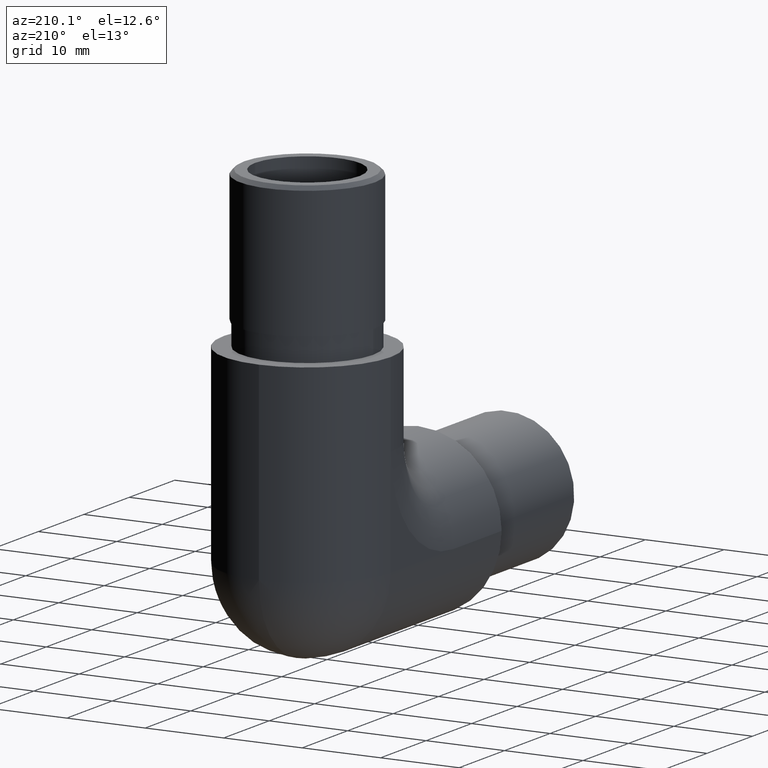
[diagram: clean part render]
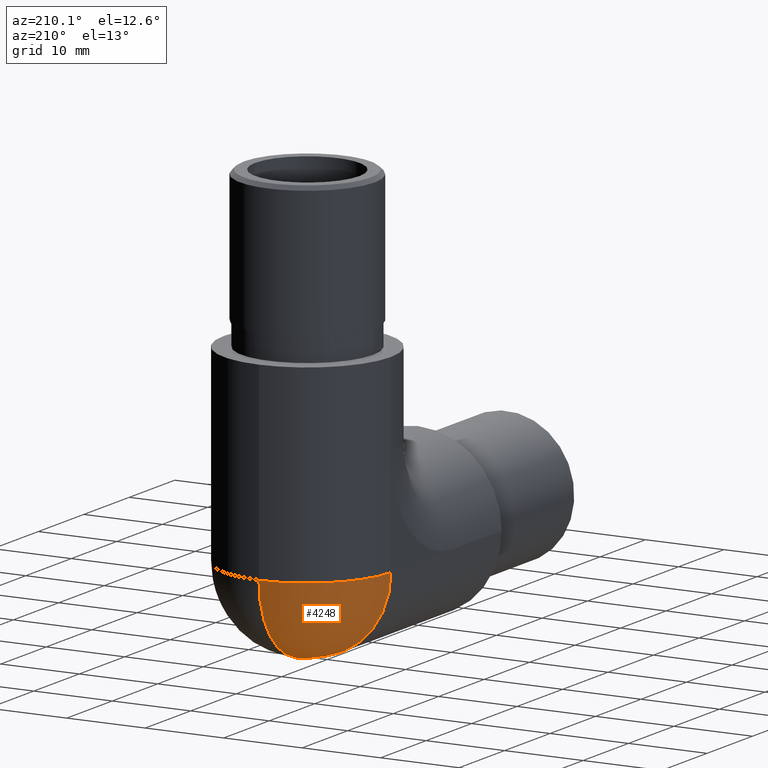
[diagram: same view with one face highlighted and labeled with its STEP entity id]
A machine part, auxiliary view. The second image highlights one B-rep face of the part: STEP entity #4248.
In plain terms, the highlighted spherical surface has radius 10.65 mm.
Its self-contained STEP definition (entity closure, byte-faithful):
#709 = DIRECTION ( 'NONE',  ( 0.0000000000000000000, 0.0000000000000000000, -1.000000000000000000 ) ) ;
#746 = DIRECTION ( 'NONE',  ( 1.000000000000000000, -0.0000000000000000000, 0.0000000000000000000 ) ) ;
#753 = AXIS2_PLACEMENT_3D ( 'NONE', #12334, #8228, #2071 ) ;
#846 = DIRECTION ( 'NONE',  ( 0.0000000000000000000, 0.0000000000000000000, -1.000000000000000000 ) ) ;
#1084 = DIRECTION ( 'NONE',  ( -1.628848334250523100E-016, 0.0000000000000000000, -1.000000000000000000 ) ) ;
#1567 = CARTESIAN_POINT ( 'NONE',  ( 1.734723475976807100E-015, 24.35000000000000500, 0.0000000000000000000 ) ) ;
#2071 = DIRECTION ( 'NONE',  ( -1.000000000000000000, 0.0000000000000000000, 1.628848334250523100E-016 ) ) ;
#2516 = AXIS2_PLACEMENT_3D ( 'NONE', #12377, #11254, #1084 ) ;
#2836 = VERTEX_POINT ( 'NONE', #8497 ) ;
#2856 = EDGE_CURVE ( 'NONE', #7298, #5007, #12760, .T. ) ;
#3589 = DIRECTION ( 'NONE',  ( -0.0000000000000000000, -1.000000000000000000, -0.0000000000000000000 ) ) ;
#3805 = CARTESIAN_POINT ( 'NONE',  ( 1.734723475976807100E-015, 24.35000000000000500, -10.65000000000000000 ) ) ;
#4248 = ADVANCED_FACE ( 'NONE', ( #5025 ), #12276, .T. ) ;
#4556 = ORIENTED_EDGE ( 'NONE', *, *, #12042, .T. ) ;
#4887 = CARTESIAN_POINT ( 'NONE',  ( 1.734723475976807100E-015, 24.35000000000000500, 0.0000000000000000000 ) ) ;
#5007 = VERTEX_POINT ( 'NONE', #3805 ) ;
#5025 = FACE_OUTER_BOUND ( 'NONE', #11289, .T. ) ;
#6281 = AXIS2_PLACEMENT_3D ( 'NONE', #1567, #3589, #709 ) ;
#6974 = AXIS2_PLACEMENT_3D ( 'NONE', #4887, #746, #846 ) ;
#7148 = CIRCLE ( 'NONE', #6974, 10.65000000000000000 ) ;
#7174 = CARTESIAN_POINT ( 'NONE',  ( -10.64999999999999900, 24.35000000000000500, 1.734723475976807100E-015 ) ) ;
#7298 = VERTEX_POINT ( 'NONE', #7174 ) ;
#8228 = DIRECTION ( 'NONE',  ( -1.628848334250523300E-016, 0.0000000000000000000, -1.000000000000000000 ) ) ;
#8325 = ORIENTED_EDGE ( 'NONE', *, *, #2856, .F. ) ;
#8497 = CARTESIAN_POINT ( 'NONE',  ( 1.734723475976807100E-015, 35.00000000000000000, 0.0000000000000000000 ) ) ;
#8887 = CIRCLE ( 'NONE', #753, 10.65000000000000000 ) ;
#9142 = ORIENTED_EDGE ( 'NONE', *, *, #10682, .F. ) ;
#10682 = EDGE_CURVE ( 'NONE', #5007, #2836, #7148, .T. ) ;
#11254 = DIRECTION ( 'NONE',  ( 0.0000000000000000000, 1.000000000000000000, 0.0000000000000000000 ) ) ;
#11289 = EDGE_LOOP ( 'NONE', ( #8325, #4556, #9142 ) ) ;
#12042 = EDGE_CURVE ( 'NONE', #7298, #2836, #8887, .T. ) ;
#12276 = SPHERICAL_SURFACE ( 'NONE', #2516, 10.65000000000000000 ) ;
#12334 = CARTESIAN_POINT ( 'NONE',  ( 1.734723475976807100E-015, 24.35000000000000500, 0.0000000000000000000 ) ) ;
#12377 = CARTESIAN_POINT ( 'NONE',  ( 1.734723475976807100E-015, 24.35000000000000500, 0.0000000000000000000 ) ) ;
#12760 = CIRCLE ( 'NONE', #6281, 10.65000000000000000 ) ;